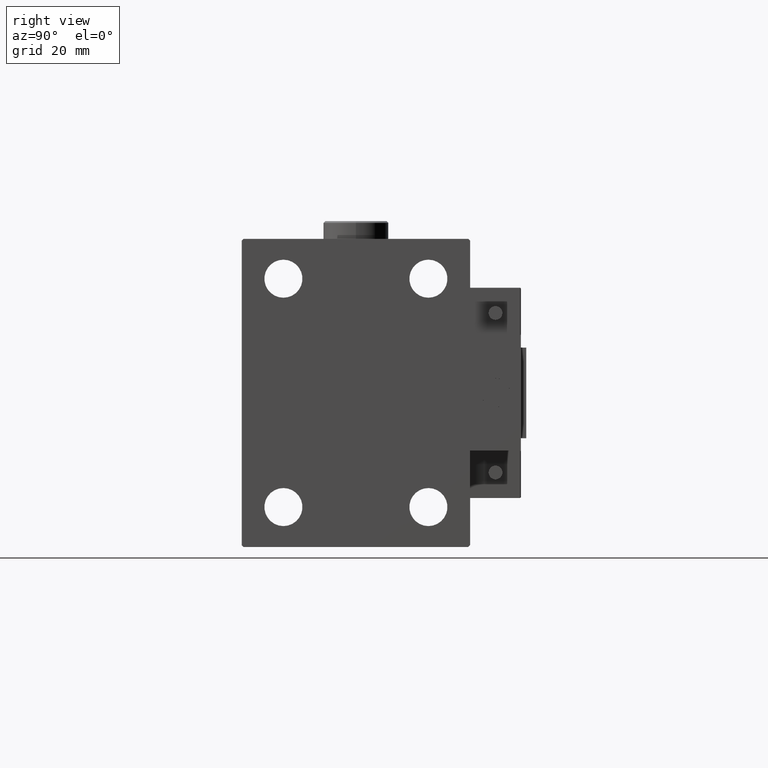
[diagram: clean part render]
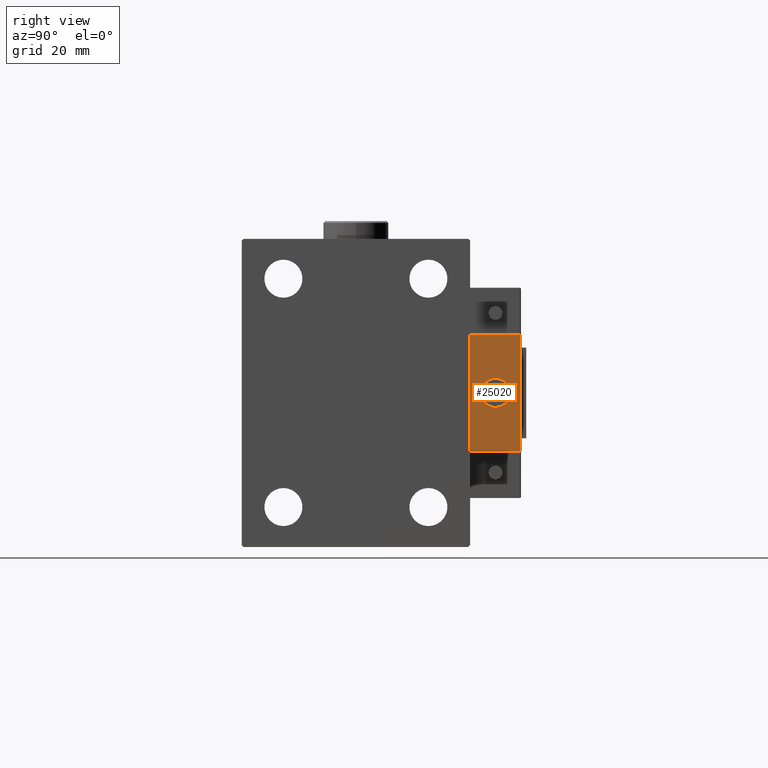
[diagram: same view with one face highlighted and labeled with its STEP entity id]
A machine part, right view. The second image highlights one B-rep face of the part: STEP entity #25020.
In plain terms, the highlighted planar face has unit normal (-1, 0, 0).
Its self-contained STEP definition (entity closure, byte-faithful):
#1195 = VERTEX_POINT ( 'NONE', #38281 ) ;
#2513 = ORIENTED_EDGE ( 'NONE', *, *, #29944, .F. ) ;
#2890 = CARTESIAN_POINT ( 'NONE',  ( 10.00000000000000000, 7.000000000000000000, -16.00000000000000711 ) ) ;
#4911 = LINE ( 'NONE', #49472, #44082 ) ;
#6436 = VERTEX_POINT ( 'NONE', #2890 ) ;
#6563 = VERTEX_POINT ( 'NONE', #47938 ) ;
#6940 = CIRCLE ( 'NONE', #46862, 4.000000000000000000 ) ;
#7358 = CARTESIAN_POINT ( 'NONE',  ( 10.00000000000000000, 7.000000000000000000, -16.00000000000000711 ) ) ;
#8529 = CARTESIAN_POINT ( 'NONE',  ( 10.00000000000000000, 0.000000000000000000, 0.000000000000000000 ) ) ;
#9133 = DIRECTION ( 'NONE',  ( 0.000000000000000000, 0.000000000000000000, -1.000000000000000000 ) ) ;
#11263 = DIRECTION ( 'NONE',  ( 0.000000000000000000, -1.000000000000000000, 0.000000000000000000 ) ) ;
#11273 = CARTESIAN_POINT ( 'NONE',  ( 10.00000000000000000, 7.000000000000000000, 15.99999999999999289 ) ) ;
#12137 = DIRECTION ( 'NONE',  ( 0.000000000000000000, 0.000000000000000000, 1.000000000000000000 ) ) ;
#12934 = DIRECTION ( 'NONE',  ( -1.000000000000000000, 0.000000000000000000, 0.000000000000000000 ) ) ;
#14697 = EDGE_CURVE ( 'NONE', #44096, #33709, #40657, .T. ) ;
#14915 = LINE ( 'NONE', #7358, #41987 ) ;
#14921 = ORIENTED_EDGE ( 'NONE', *, *, #22855, .T. ) ;
#14926 = LINE ( 'NONE', #11273, #28714 ) ;
#15471 = ORIENTED_EDGE ( 'NONE', *, *, #46381, .T. ) ;
#15490 = CARTESIAN_POINT ( 'NONE',  ( 10.00000000000000000, 4.898587196589412829E-16, -4.000000000000000000 ) ) ;
#15790 = DIRECTION ( 'NONE',  ( -1.000000000000000000, 0.000000000000000000, 0.000000000000000000 ) ) ;
#20319 = CARTESIAN_POINT ( 'NONE',  ( 10.00000000000000000, -7.000000000000000000, 15.99999999999999289 ) ) ;
#20468 = PLANE ( 'NONE',  #34296 ) ;
#20767 = DIRECTION ( 'NONE',  ( 0.000000000000000000, 0.000000000000000000, -1.000000000000000000 ) ) ;
#20981 = DIRECTION ( 'NONE',  ( 0.000000000000000000, 0.000000000000000000, 1.000000000000000000 ) ) ;
#22855 = EDGE_CURVE ( 'NONE', #45978, #6563, #6940, .T. ) ;
#23470 = DIRECTION ( 'NONE',  ( 0.000000000000000000, -1.000000000000000000, 0.000000000000000000 ) ) ;
#25020 = ADVANCED_FACE ( 'NONE', ( #44230, #40564 ), #20468, .F. ) ;
#25147 = CARTESIAN_POINT ( 'NONE',  ( 10.00000000000000000, 0.000000000000000000, 0.000000000000000000 ) ) ;
#27089 = EDGE_LOOP ( 'NONE', ( #37721, #39778, #2513, #15471 ) ) ;
#28648 = CARTESIAN_POINT ( 'NONE',  ( 10.00000000000000000, -7.000000000000000000, 15.99999999999999289 ) ) ;
#28714 = VECTOR ( 'NONE', #23470, 1000.000000000000000 ) ;
#29944 = EDGE_CURVE ( 'NONE', #1195, #6436, #4911, .T. ) ;
#30964 = EDGE_CURVE ( 'NONE', #6563, #45978, #31581, .T. ) ;
#31508 = VECTOR ( 'NONE', #9133, 1000.000000000000000 ) ;
#31581 = CIRCLE ( 'NONE', #39098, 4.000000000000000000 ) ;
#32460 = DIRECTION ( 'NONE',  ( -0.000000000000000000, 0.000000000000000000, 1.000000000000000000 ) ) ;
#33709 = VERTEX_POINT ( 'NONE', #34669 ) ;
#34296 = AXIS2_PLACEMENT_3D ( 'NONE', #8529, #45265, #32460 ) ;
#34669 = CARTESIAN_POINT ( 'NONE',  ( 10.00000000000000000, -7.000000000000000000, -16.00000000000000711 ) ) ;
#37433 = EDGE_LOOP ( 'NONE', ( #41329, #14921 ) ) ;
#37721 = ORIENTED_EDGE ( 'NONE', *, *, #14697, .T. ) ;
#38281 = CARTESIAN_POINT ( 'NONE',  ( 10.00000000000000000, 7.000000000000000000, 15.99999999999999289 ) ) ;
#39098 = AXIS2_PLACEMENT_3D ( 'NONE', #25147, #12934, #20981 ) ;
#39778 = ORIENTED_EDGE ( 'NONE', *, *, #45484, .F. ) ;
#40564 = FACE_OUTER_BOUND ( 'NONE', #27089, .T. ) ;
#40657 = LINE ( 'NONE', #28648, #31508 ) ;
#41329 = ORIENTED_EDGE ( 'NONE', *, *, #30964, .T. ) ;
#41987 = VECTOR ( 'NONE', #11263, 1000.000000000000000 ) ;
#44082 = VECTOR ( 'NONE', #20767, 1000.000000000000000 ) ;
#44096 = VERTEX_POINT ( 'NONE', #20319 ) ;
#44230 = FACE_BOUND ( 'NONE', #37433, .T. ) ;
#45265 = DIRECTION ( 'NONE',  ( -1.000000000000000000, 0.000000000000000000, -0.000000000000000000 ) ) ;
#45484 = EDGE_CURVE ( 'NONE', #6436, #33709, #14915, .T. ) ;
#45978 = VERTEX_POINT ( 'NONE', #15490 ) ;
#46381 = EDGE_CURVE ( 'NONE', #1195, #44096, #14926, .T. ) ;
#46862 = AXIS2_PLACEMENT_3D ( 'NONE', #51507, #15790, #12137 ) ;
#47938 = CARTESIAN_POINT ( 'NONE',  ( 10.00000000000000000, 0.000000000000000000, 4.000000000000000000 ) ) ;
#49472 = CARTESIAN_POINT ( 'NONE',  ( 10.00000000000000000, 7.000000000000000000, 15.99999999999999289 ) ) ;
#51507 = CARTESIAN_POINT ( 'NONE',  ( 10.00000000000000000, 0.000000000000000000, 0.000000000000000000 ) ) ;